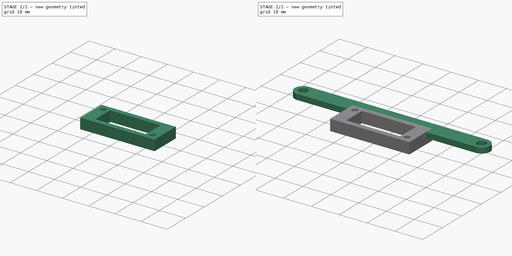
[diagram: build sequence overview — one tinted view per stage of 2, left to right]
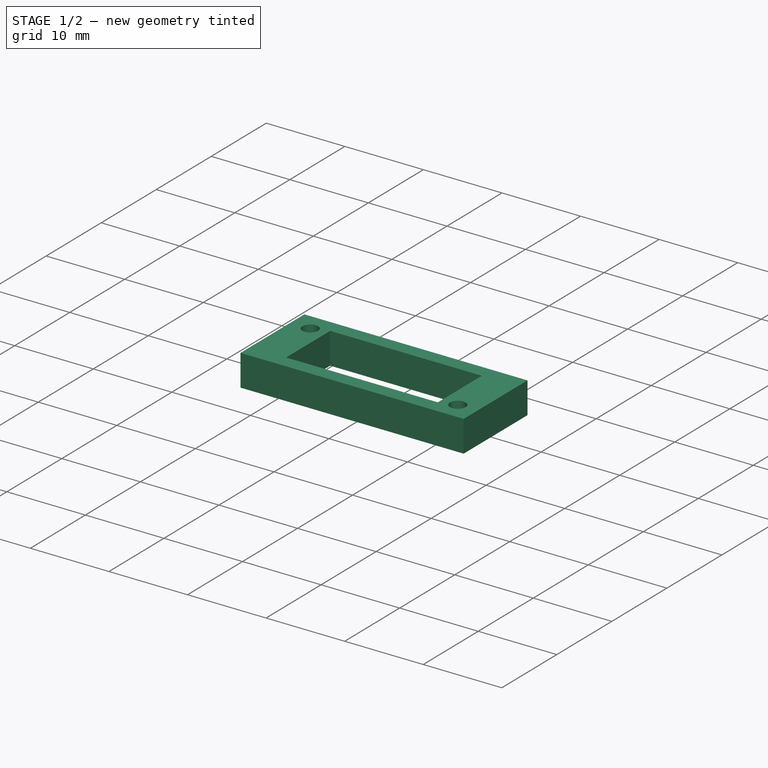
[diagram: stage 1 of 2 — iso view after this stage's code; geometry added in this stage tinted green]
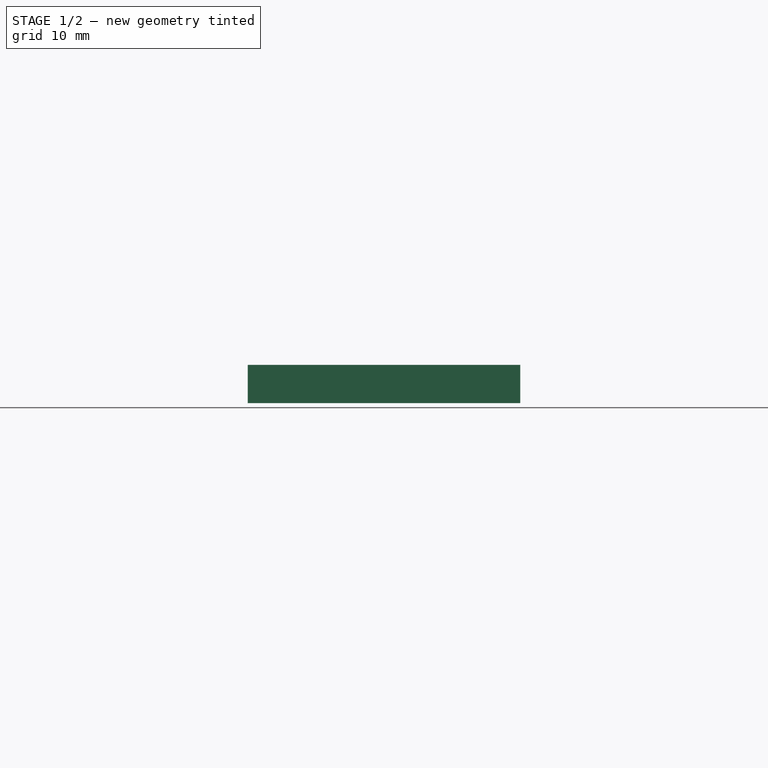
[diagram: stage 1 of 2 — front view after this stage's code; geometry added in this stage tinted green]
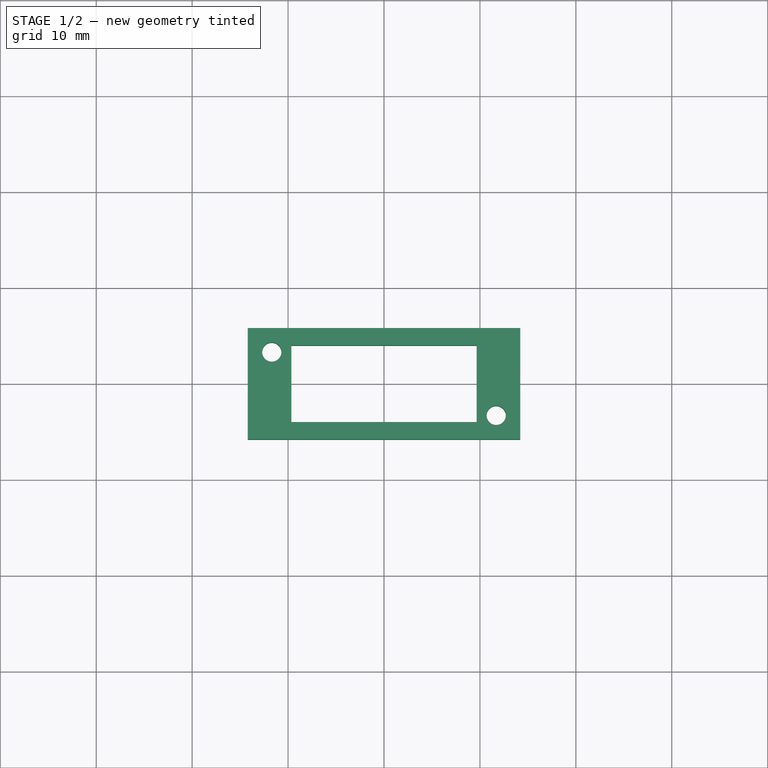
[diagram: stage 1 of 2 — top view after this stage's code; geometry added in this stage tinted green]
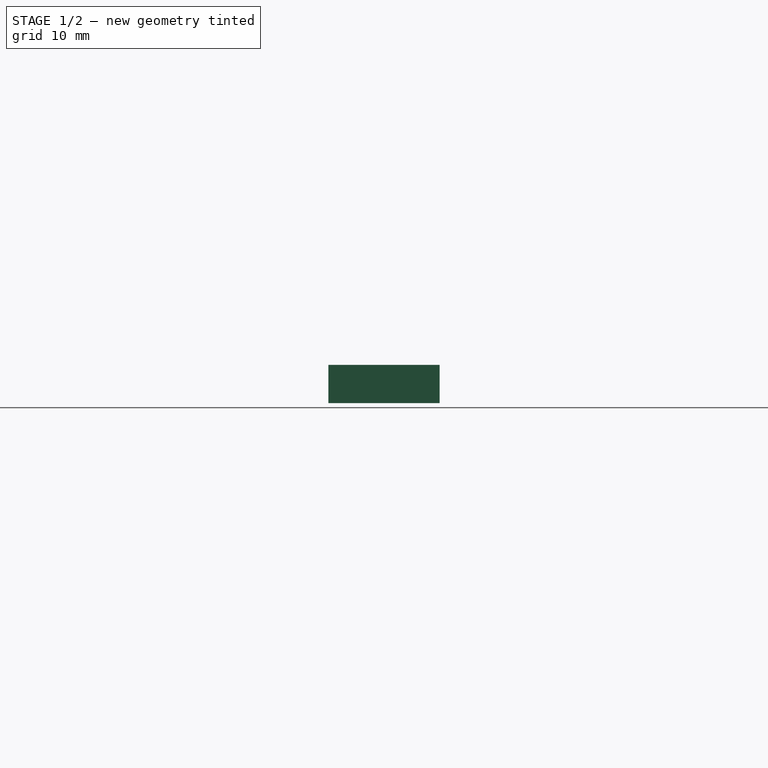
[diagram: stage 1 of 2 — right view after this stage's code; geometry added in this stage tinted green]
FCSTD DOCUMENT  (FreeCAD 0.16R6707 (Git))
Label: GroundDistanceSensor
License: All rights reserved
LicenseURL: http://en.wikipedia.org/wiki/All_rights_reserved
objects: Sketcher::SketchObject×2, PartDesign::Pad×2
note: 6 computed .brp shape members not serialized (recipe doc carries the construction recipe); baked Part::Feature solids carry a one-line shape summary decoded from their .brp

FEATURE [Sketcher::SketchObject] Sketch
  sketch-geometry (10):
    g0: LineSegment StartX=-14.2 StartY=-5.8 StartZ=0 EndX=14.2 EndY=-5.8 EndZ=0
    g1: LineSegment StartX=14.2 StartY=-5.8 StartZ=0 EndX=14.2 EndY=5.8 EndZ=0
    g2: LineSegment StartX=14.2 StartY=5.8 StartZ=0 EndX=-14.2 EndY=5.8 EndZ=0
    g3: LineSegment StartX=-14.2 StartY=5.8 StartZ=0 EndX=-14.2 EndY=-5.8 EndZ=0
    g4: LineSegment StartX=-9.65 StartY=-4 StartZ=0 EndX=9.65 EndY=-4 EndZ=0
    g5: LineSegment StartX=9.65 StartY=-4 StartZ=0 EndX=9.65 EndY=4 EndZ=0
    g6: LineSegment StartX=9.65 StartY=4 StartZ=0 EndX=-9.65 EndY=4 EndZ=0
    g7: LineSegment StartX=-9.65 StartY=4 StartZ=0 EndX=-9.65 EndY=-4 EndZ=0
    g8: Circle CenterX=-11.7 CenterY=3.3 CenterZ=0 NormalX=0 NormalY=0 NormalZ=1 Radius=1
    g9: Circle CenterX=11.7 CenterY=-3.3 CenterZ=0 NormalX=0 NormalY=0 NormalZ=1 Radius=1
  constraints (27):
    c: Coincident(g0,g1)
    c: Coincident(g1,g2)
    c: Coincident(g2,g3)
    c: Coincident(g3,g0)
    c: Horizontal(g0)
    c: Horizontal(g2)
    c: Vertical(g1)
    c: Vertical(g3)
    c: Coincident(g4,g5)
    c: Coincident(g5,g6)
    c: Coincident(g6,g7)
    c: Coincident(g7,g4)
    c: Horizontal(g4)
    c: Horizontal(g6)
    c: Vertical(g5)
    c: Vertical(g7)
    c: Symmetric(g4,g5,g-1)
    c: Symmetric(g0,g1,g-1)
    c: Distance(g7) = 8
    c: Distance(g6) = 19.3
    c: Equal(g9,g8)
    c: Symmetric(g9,g8,g-1)
    c: Radius(g8) = 1
    c: DistanceX(g8,g9) = 23.4
    c: DistanceY(g9,g8) = 6.6
    c: DistanceY(g8,g2) = 2.5
    c: DistanceX(g2,g8) = 2.5
FEATURE [PartDesign::Pad] Pad
  Length = 4
  Length2 = 100
  Sketch = -> Sketch
  Type = 0
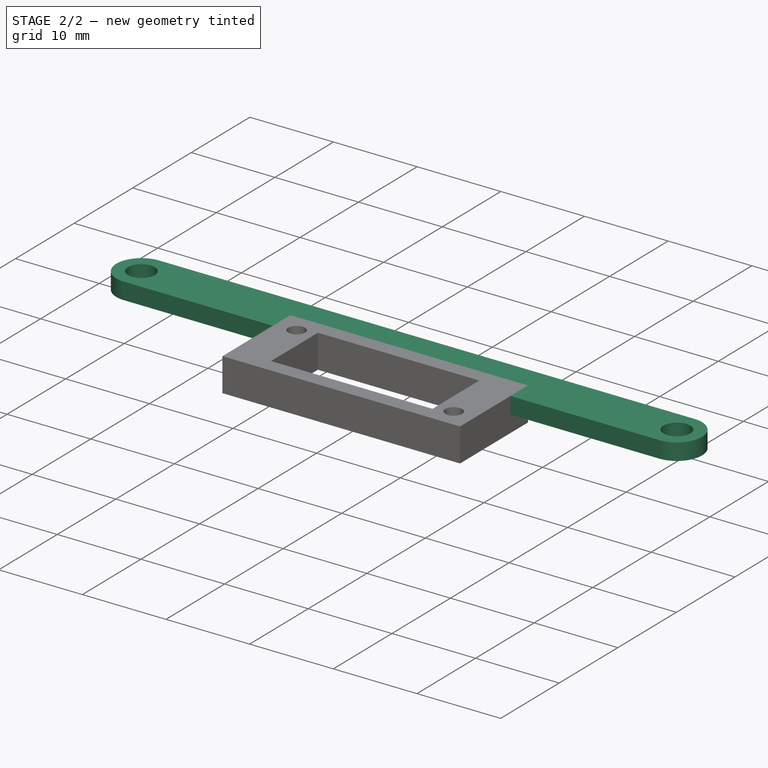
[diagram: stage 2 of 2 — iso view after this stage's code; geometry added in this stage tinted green]
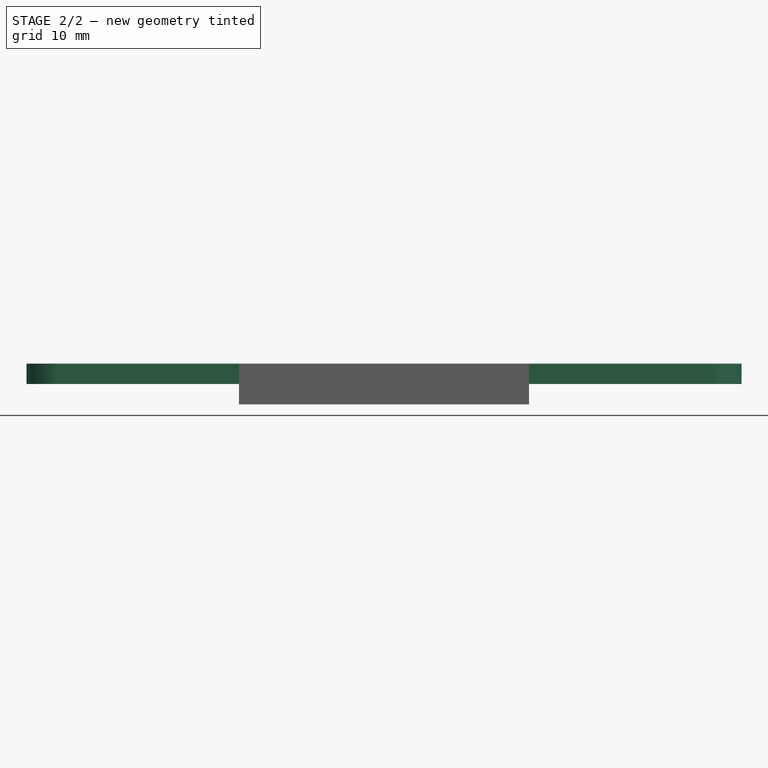
[diagram: stage 2 of 2 — front view after this stage's code; geometry added in this stage tinted green]
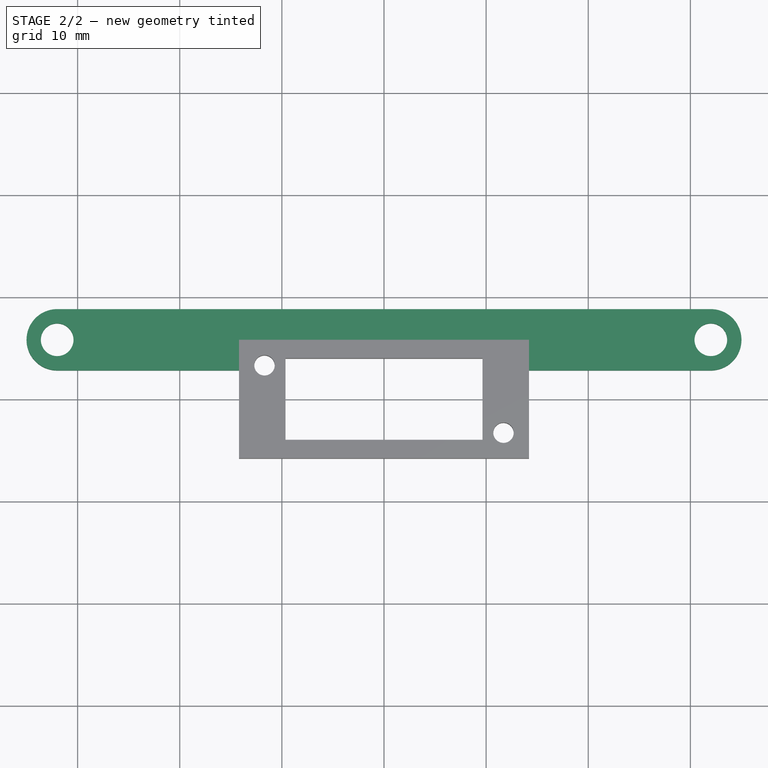
[diagram: stage 2 of 2 — top view after this stage's code; geometry added in this stage tinted green]
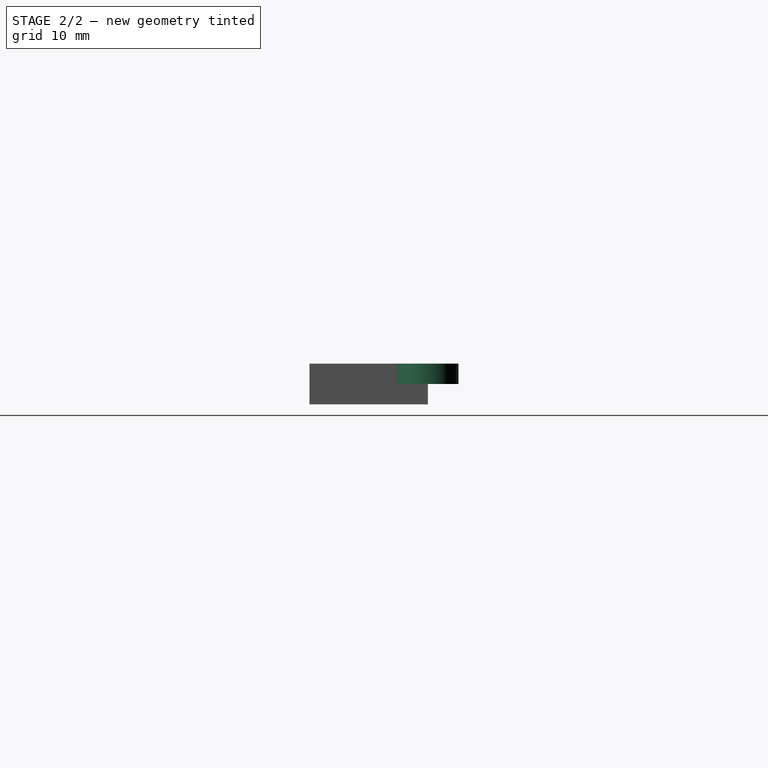
[diagram: stage 2 of 2 — right view after this stage's code; geometry added in this stage tinted green]
FEATURE [Sketcher::SketchObject] Sketch001
  ExternalGeometry = -> [Pad]
  Placement = pos=(0,0,4) rot=(0,0,1;0rad)
  Support = -> Pad [Face12]
  sketch-geometry (10):
    g0: Circle CenterX=-32 CenterY=5.8 CenterZ=0 NormalX=0 NormalY=0 NormalZ=1 Radius=1.6
    g1: Circle CenterX=32 CenterY=5.8 CenterZ=0 NormalX=0 NormalY=0 NormalZ=1 Radius=1.6
    g2: LineSegment StartX=-14.2 StartY=2.8 StartZ=0 EndX=-32 EndY=2.8 EndZ=0
    g3: ArcOfCircle CenterX=-32 CenterY=5.8 CenterZ=0 NormalX=0 NormalY=0 NormalZ=1 Radius=3 StartAngle=1.5708 EndAngle=4.71239
    g4: LineSegment StartX=-32 StartY=8.8 StartZ=0 EndX=32 EndY=8.8 EndZ=0
    g5: ArcOfCircle CenterX=32 CenterY=5.8 CenterZ=0 NormalX=0 NormalY=0 NormalZ=1 Radius=3 StartAngle=4.71239 EndAngle=7.85398
    g6: LineSegment StartX=32 StartY=2.8 StartZ=0 EndX=14.2 EndY=2.8 EndZ=0
    g7: LineSegment StartX=14.2 StartY=2.8 StartZ=0 EndX=14.2 EndY=5.7 EndZ=0
    g8: LineSegment StartX=14.2 StartY=5.7 StartZ=0 EndX=-14.2 EndY=5.7 EndZ=0
    g9: LineSegment StartX=-14.2 StartY=5.7 StartZ=0 EndX=-14.2 EndY=2.8 EndZ=0
  constraints (27):
    c: PointOnObject(g0,g-3)
    c: Radius(g0) = 1.6
    c: PointOnObject(g1,g-3)
    c: Equal(g0,g1)
    c: Symmetric(g1,g0,g-2)
    c: Distance(g0,g1) = 64
    c: Horizontal(g2)
    c: Tangent(g2,g3) = 1.5708
    c: Tangent(g3,g4) = 1.5708
    c: Horizontal(g4)
    c: Coincident(g3,g0)
    c: Radius(g3) = 3
    c: Coincident(g5,g1)
    c: Coincident(g5,g4)
    c: Tangent(g5,g4)
    c: Tangent(g5,g6) = 1.5708
    c: Coincident(g6,g7)
    c: Vertical(g7)
    c: Coincident(g7,g8)
    c: Horizontal(g8)
    c: Coincident(g8,g9)
    c: Coincident(g9,g2)
    c: Vertical(g9)
    c: Horizontal(g6)
    c: PointOnObject(g8,g-5)
    c: PointOnObject(g7,g-4)
    c: Distance(g7,g-4) = 0.1
FEATURE [PartDesign::Pad] Pad001
  Length = 2
  Length2 = 100
  Reversed = true
  Sketch = -> Sketch001
  Type = 0
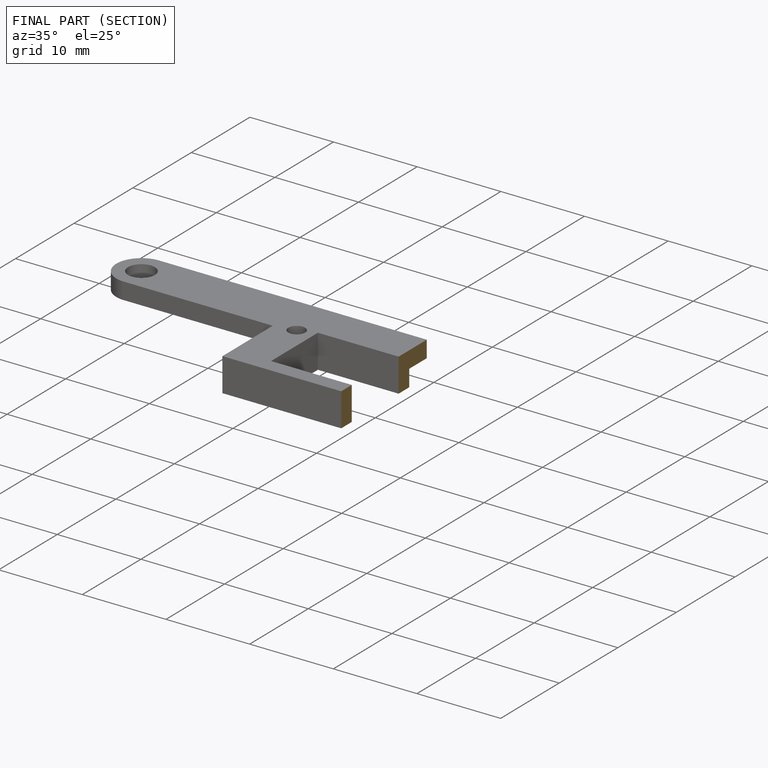
[diagram: finished part — half-section view (interior)]
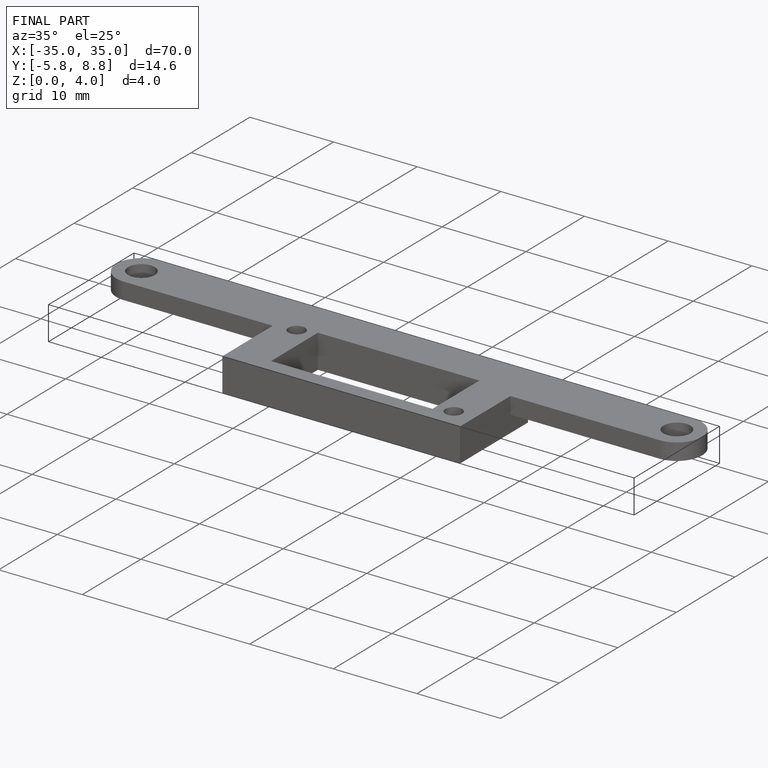
[diagram: finished part — iso view with bounding-box wireframe]
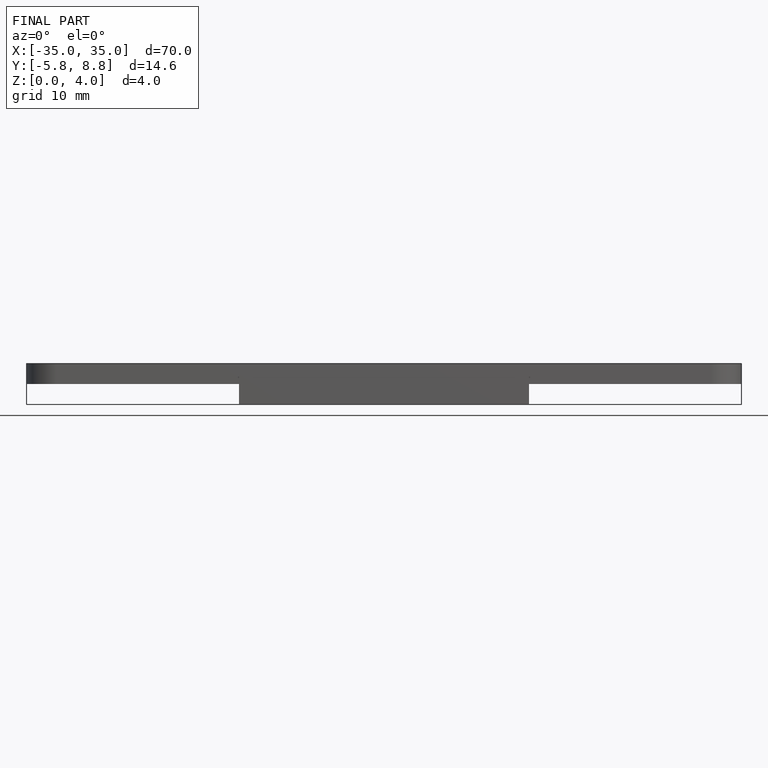
[diagram: finished part — front view with bounding-box wireframe]
